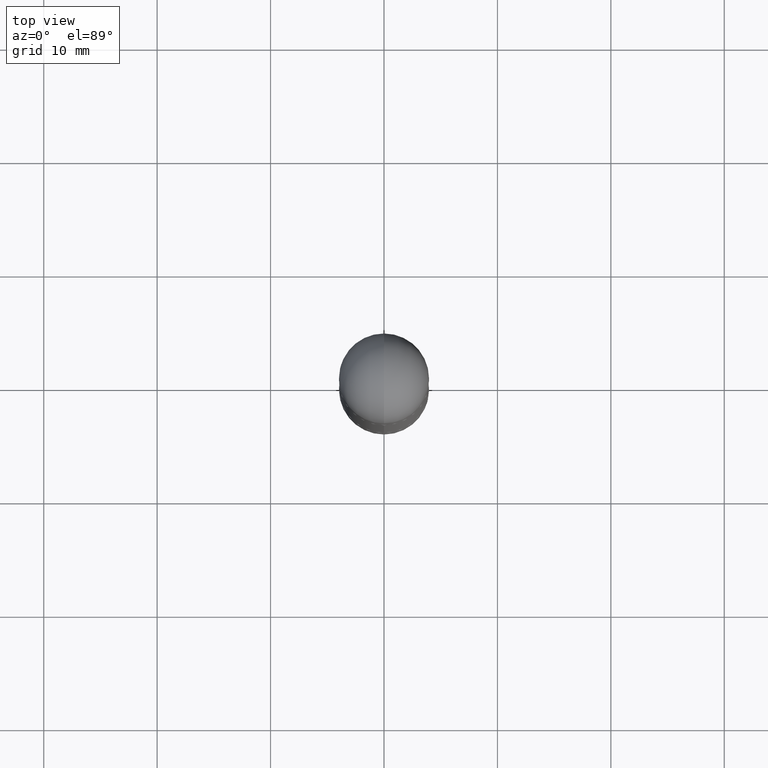
[diagram: clean part render]
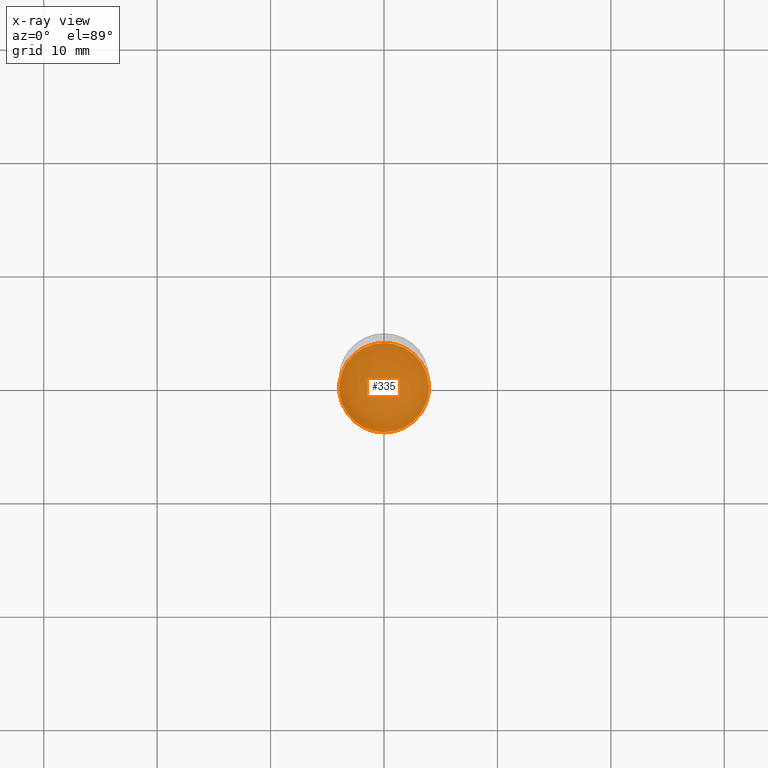
[diagram: x-ray — body ghosted, one internal face saturated and labeled with its STEP entity id]
A machine part, top view, then the same camera in x-ray: the body is ghosted and one INTERNAL B-rep face — a face not visible from any outside direction — is saturated and labeled: STEP entity #335.
In plain terms, the highlighted planar face has unit normal (-0, 0, 1).
Its self-contained STEP definition (entity closure, byte-faithful):
#56 = DIRECTION ( 'NONE',  ( -2.445190853469272211E-29, 3.491879382952348982E-15, 1.000000000000000000 ) ) ;
#60 = CARTESIAN_POINT ( 'NONE',  ( 4.890381706938546103E-29, -6.983758765904698753E-15, -2.000000000000000444 ) ) ;
#68 = CARTESIAN_POINT ( 'NONE',  ( 1.106670310946405735E-15, 0.1552499999999930047, -2.000000000000000888 ) ) ;
#144 = CARTESIAN_POINT ( 'NONE',  ( -1.084104955710744053E-15, -0.1552500000000069935, -1.999999999999999778 ) ) ;
#158 = DIRECTION ( 'NONE',  ( -6.982962677686265922E-15, -1.000000000000000000, 3.519288880726909138E-15 ) ) ;
#170 = CARTESIAN_POINT ( 'NONE',  ( 4.890381706938546103E-29, -6.983758765904698753E-15, -2.000000000000000444 ) ) ;
#185 = FACE_OUTER_BOUND ( 'NONE', #243, .T. ) ;
#189 = DIRECTION ( 'NONE',  ( -6.982962677686265922E-15, -1.000000000000000000, 3.491879382952348982E-15 ) ) ;
#243 = EDGE_LOOP ( 'NONE', ( #484, #448 ) ) ;
#252 = CIRCLE ( 'NONE', #315, 0.1552499999999999991 ) ;
#260 = CARTESIAN_POINT ( 'NONE',  ( 4.890381706938545543E-29, -6.983758765904697175E-15, -2.000000000000000000 ) ) ;
#315 = AXIS2_PLACEMENT_3D ( 'NONE', #60, #382, #566 ) ;
#335 = ADVANCED_FACE ( 'NONE', ( #185 ), #428, .F. ) ;
#343 = AXIS2_PLACEMENT_3D ( 'NONE', #170, #737, #158 ) ;
#382 = DIRECTION ( 'NONE',  ( -2.445190853469272491E-29, 3.491879382952348982E-15, 1.000000000000000000 ) ) ;
#403 = VERTEX_POINT ( 'NONE', #68 ) ;
#428 = PLANE ( 'NONE',  #456 ) ;
#448 = ORIENTED_EDGE ( 'NONE', *, *, #681, .F. ) ;
#456 = AXIS2_PLACEMENT_3D ( 'NONE', #260, #56, #189 ) ;
#484 = ORIENTED_EDGE ( 'NONE', *, *, #791, .F. ) ;
#566 = DIRECTION ( 'NONE',  ( -6.982962677686265922E-15, -1.000000000000000000, 3.519288880726909138E-15 ) ) ;
#588 = CIRCLE ( 'NONE', #343, 0.1552499999999999991 ) ;
#624 = VERTEX_POINT ( 'NONE', #144 ) ;
#681 = EDGE_CURVE ( 'NONE', #403, #624, #588, .T. ) ;
#737 = DIRECTION ( 'NONE',  ( -2.445190853469272491E-29, 3.491879382952348982E-15, 1.000000000000000000 ) ) ;
#791 = EDGE_CURVE ( 'NONE', #624, #403, #252, .T. ) ;